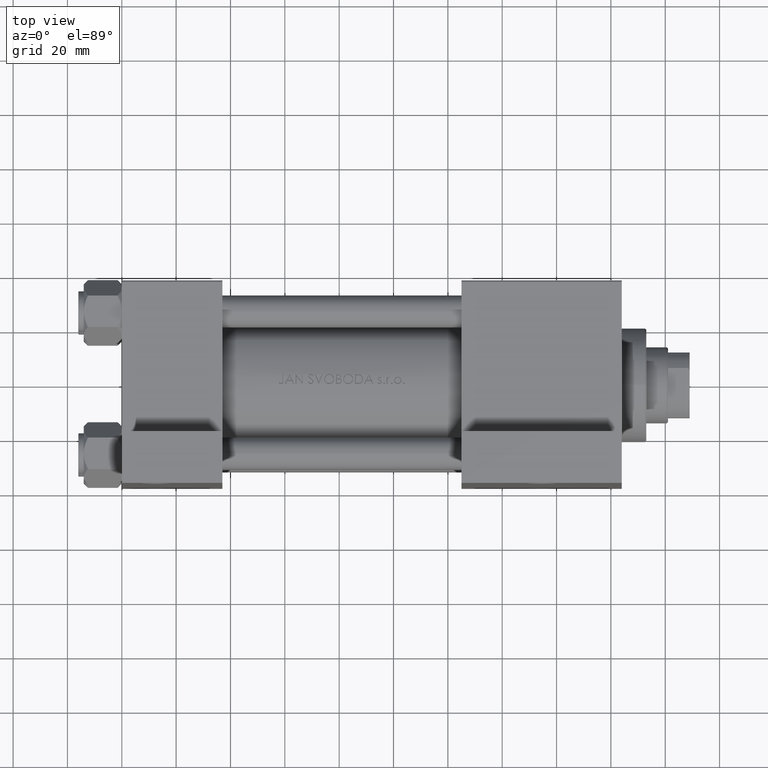
[diagram: clean part render]
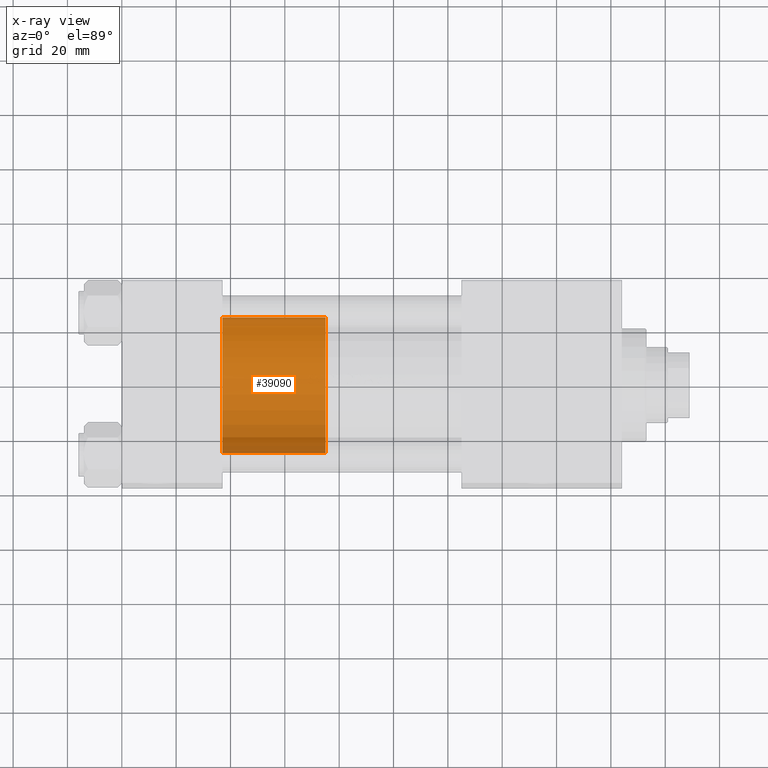
[diagram: x-ray — body ghosted, one internal face saturated and labeled with its STEP entity id]
A machine part, top view, then the same camera in x-ray: the body is ghosted and one INTERNAL B-rep face — a face not visible from any outside direction — is saturated and labeled: STEP entity #39090.
In plain terms, the highlighted cylindrical surface (partial cylindrical patch) has radius 25 mm, axis along (-1, 0, 0).
Its self-contained STEP definition (entity closure, byte-faithful):
#251 = CARTESIAN_POINT ( 'NONE',  ( 0.000000000000000000, 0.000000000000000000, 0.000000000000000000 ) ) ;
#1285 = ORIENTED_EDGE ( 'NONE', *, *, #11043, .F. ) ;
#1467 = CIRCLE ( 'NONE', #10689, 25.00000000000000000 ) ;
#2006 = AXIS2_PLACEMENT_3D ( 'NONE', #251, #11082, #26206 ) ;
#2804 = EDGE_CURVE ( 'NONE', #33888, #19127, #1467, .T. ) ;
#4509 = LINE ( 'NONE', #44420, #7563 ) ;
#4985 = DIRECTION ( 'NONE',  ( -0.000000000000000000, -0.000000000000000000, -1.000000000000000000 ) ) ;
#7289 = VERTEX_POINT ( 'NONE', #13454 ) ;
#7563 = VECTOR ( 'NONE', #4985, 1000.000000000000000 ) ;
#10221 = DIRECTION ( 'NONE',  ( -0.000000000000000000, -0.000000000000000000, -1.000000000000000000 ) ) ;
#10689 = AXIS2_PLACEMENT_3D ( 'NONE', #29210, #25847, #28976 ) ;
#11043 = EDGE_CURVE ( 'NONE', #19127, #7289, #45805, .T. ) ;
#11082 = DIRECTION ( 'NONE',  ( 0.000000000000000000, 0.000000000000000000, 1.000000000000000000 ) ) ;
#11966 = CIRCLE ( 'NONE', #2006, 25.00000000000000000 ) ;
#11967 = CARTESIAN_POINT ( 'NONE',  ( 25.00000000000000000, 3.061616997868383043E-15, 0.000000000000000000 ) ) ;
#13454 = CARTESIAN_POINT ( 'NONE',  ( -25.00000000000000000, 0.000000000000000000, 0.000000000000000000 ) ) ;
#16915 = ORIENTED_EDGE ( 'NONE', *, *, #35860, .T. ) ;
#17884 = ORIENTED_EDGE ( 'NONE', *, *, #2804, .F. ) ;
#19127 = VERTEX_POINT ( 'NONE', #22009 ) ;
#20064 = VERTEX_POINT ( 'NONE', #11967 ) ;
#20333 = CYLINDRICAL_SURFACE ( 'NONE', #34377, 25.00000000000000000 ) ;
#20594 = CARTESIAN_POINT ( 'NONE',  ( 25.00000000000000000, 3.061616997868383043E-15, 38.00000000000000000 ) ) ;
#22009 = CARTESIAN_POINT ( 'NONE',  ( -25.00000000000000000, 0.000000000000000000, 38.00000000000000000 ) ) ;
#22251 = VECTOR ( 'NONE', #31359, 1000.000000000000000 ) ;
#25847 = DIRECTION ( 'NONE',  ( 0.000000000000000000, 0.000000000000000000, 1.000000000000000000 ) ) ;
#26206 = DIRECTION ( 'NONE',  ( 1.000000000000000000, 0.000000000000000000, 0.000000000000000000 ) ) ;
#28244 = DIRECTION ( 'NONE',  ( -1.000000000000000000, 0.000000000000000000, 0.000000000000000000 ) ) ;
#28976 = DIRECTION ( 'NONE',  ( 1.000000000000000000, 0.000000000000000000, 0.000000000000000000 ) ) ;
#29210 = CARTESIAN_POINT ( 'NONE',  ( 0.000000000000000000, 0.000000000000000000, 38.00000000000000000 ) ) ;
#31359 = DIRECTION ( 'NONE',  ( -0.000000000000000000, -0.000000000000000000, -1.000000000000000000 ) ) ;
#31746 = EDGE_LOOP ( 'NONE', ( #17884, #16915, #45814, #1285 ) ) ;
#33888 = VERTEX_POINT ( 'NONE', #20594 ) ;
#34377 = AXIS2_PLACEMENT_3D ( 'NONE', #42675, #10221, #28244 ) ;
#35860 = EDGE_CURVE ( 'NONE', #33888, #20064, #4509, .T. ) ;
#38583 = CARTESIAN_POINT ( 'NONE',  ( -25.00000000000000000, 0.000000000000000000, 38.00000000000000000 ) ) ;
#39090 = ADVANCED_FACE ( 'NONE', ( #46753 ), #20333, .T. ) ;
#42675 = CARTESIAN_POINT ( 'NONE',  ( 0.000000000000000000, 0.000000000000000000, 38.00000000000000000 ) ) ;
#44420 = CARTESIAN_POINT ( 'NONE',  ( 25.00000000000000000, 3.061616997868383043E-15, 38.00000000000000000 ) ) ;
#45805 = LINE ( 'NONE', #38583, #22251 ) ;
#45814 = ORIENTED_EDGE ( 'NONE', *, *, #46568, .T. ) ;
#46568 = EDGE_CURVE ( 'NONE', #20064, #7289, #11966, .T. ) ;
#46753 = FACE_OUTER_BOUND ( 'NONE', #31746, .T. ) ;